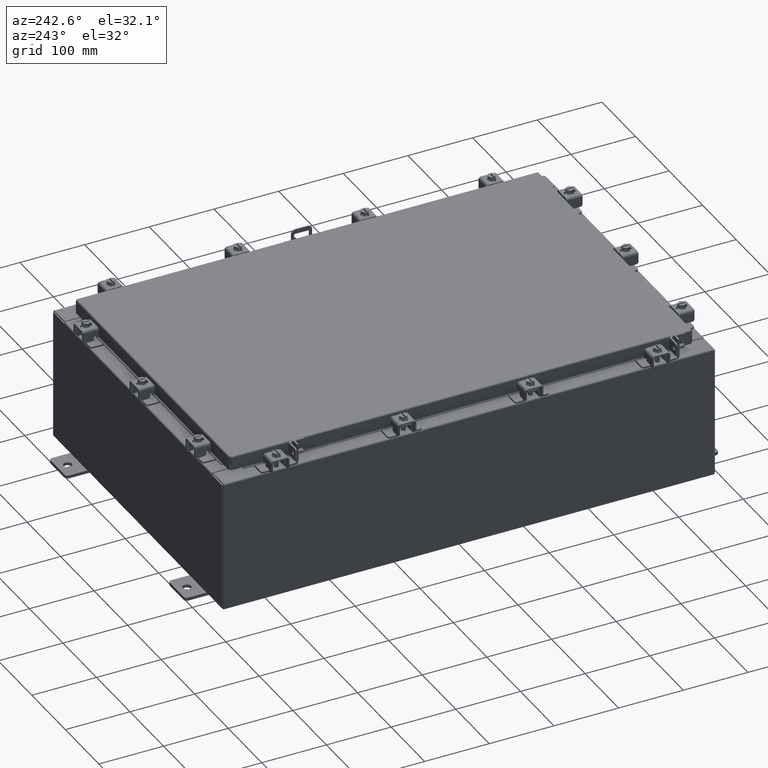
[diagram: clean part render]
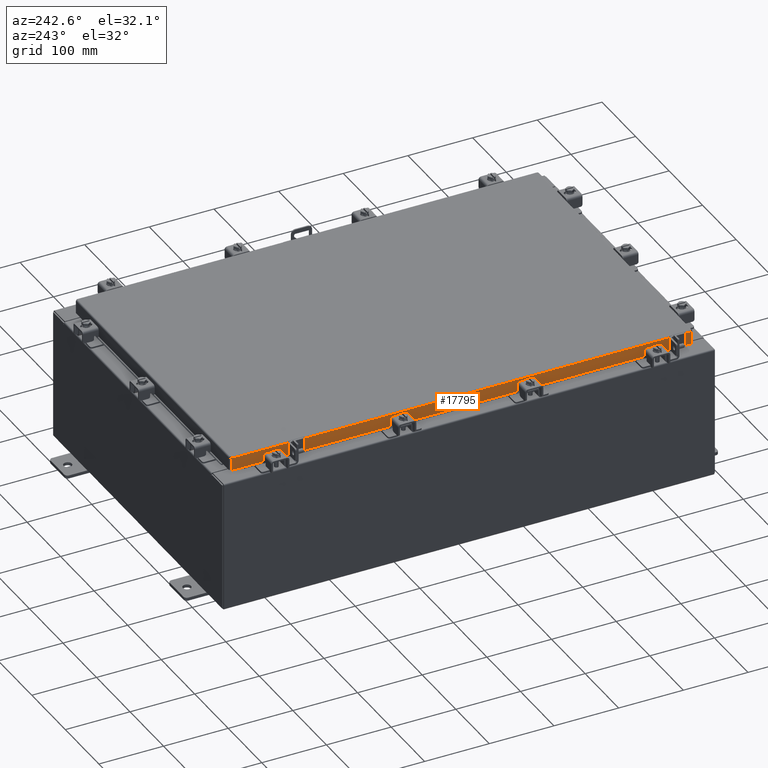
[diagram: same view with one face highlighted and labeled with its STEP entity id]
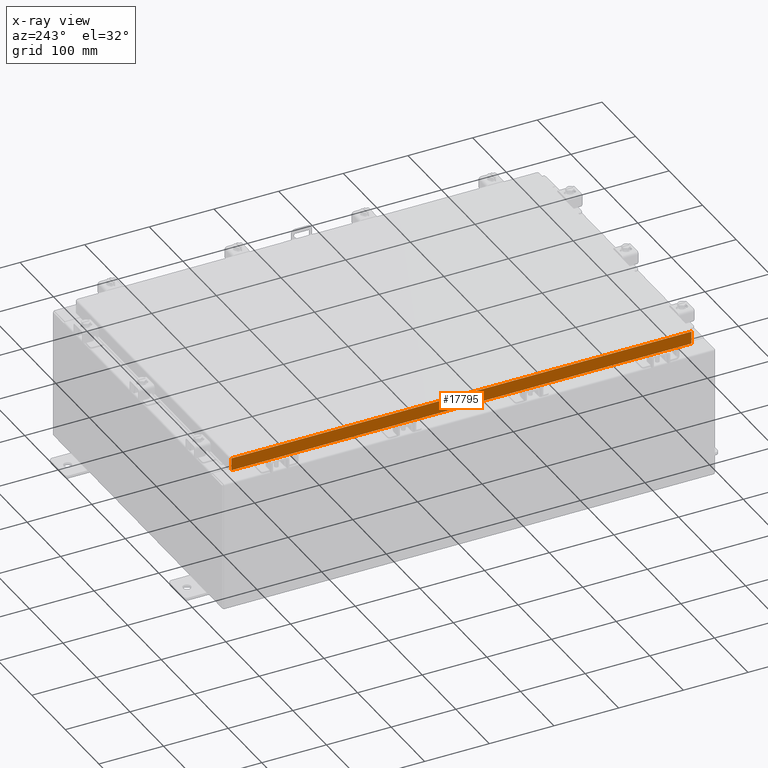
[diagram: x-ray of the same camera — body ghosted, the highlighted face saturated]
A machine part, auxiliary view. The second image highlights one B-rep face of the part: STEP entity #17795.
The next image is the same camera in x-ray: the body ghosted, the highlighted face saturated — about 0% of this face is hidden behind the body in this view.
In plain terms, the highlighted planar face has unit normal (1, 0, -0).
Its self-contained STEP definition (entity closure, byte-faithful):
#189 = CARTESIAN_POINT ( 'NONE',  ( -9.077999999999999400, 14.00515786437627400, -0.8499999999999963100 ) ) ;
#209 = VECTOR ( 'NONE', #6712, 39.37007874015748100 ) ;
#491 = VECTOR ( 'NONE', #5502, 39.37007874015748100 ) ;
#652 = DIRECTION ( 'NONE',  ( -2.818880942772360100E-015, 0.0000000000000000000, -1.000000000000000000 ) ) ;
#1519 = ORIENTED_EDGE ( 'NONE', *, *, #11576, .F. ) ;
#1623 = AXIS2_PLACEMENT_3D ( 'NONE', #4145, #11312, #652 ) ;
#2158 = VERTEX_POINT ( 'NONE', #21833 ) ;
#2159 = ORIENTED_EDGE ( 'NONE', *, *, #17341, .F. ) ;
#3682 = VECTOR ( 'NONE', #19810, 39.37007874015748100 ) ;
#3809 = VERTEX_POINT ( 'NONE', #189 ) ;
#3819 = LINE ( 'NONE', #19237, #209 ) ;
#4083 = VECTOR ( 'NONE', #7180, 39.37007874015748100 ) ;
#4145 = CARTESIAN_POINT ( 'NONE',  ( -9.077999999999997600, -3.100053527314609600E-030, 2.585061485449906300E-014 ) ) ;
#4181 = CARTESIAN_POINT ( 'NONE',  ( -9.077999999999997600, 14.00515786437626900, 1.236481095165428500E-013 ) ) ;
#4447 = VERTEX_POINT ( 'NONE', #4790 ) ;
#4790 = CARTESIAN_POINT ( 'NONE',  ( -9.077999999999997600, 14.00515786437626900, -0.08770000000000007000 ) ) ;
#5400 = CARTESIAN_POINT ( 'NONE',  ( -9.077999999999999400, -14.09399999999999600, -0.8499999999999996400 ) ) ;
#5502 = DIRECTION ( 'NONE',  ( -0.0000000000000000000, 1.000000000000000000, -0.0000000000000000000 ) ) ;
#6697 = VERTEX_POINT ( 'NONE', #15215 ) ;
#6712 = DIRECTION ( 'NONE',  ( -2.818880942772360100E-015, 6.982962677686265900E-015, -1.000000000000000000 ) ) ;
#6741 = ORIENTED_EDGE ( 'NONE', *, *, #12191, .F. ) ;
#7180 = DIRECTION ( 'NONE',  ( -0.0000000000000000000, 1.000000000000000000, 1.211441035930299800E-016 ) ) ;
#8811 = DIRECTION ( 'NONE',  ( 3.414908049476327800E-031, -1.000000000000000000, -9.308245715024052500E-046 ) ) ;
#8873 = CARTESIAN_POINT ( 'NONE',  ( -9.077999999999999400, -14.00515786437626200, -0.8499999999999996400 ) ) ;
#9103 = CARTESIAN_POINT ( 'NONE',  ( -9.077999999999999400, -14.09399999999999600, -0.8499999999999996400 ) ) ;
#9205 = ORIENTED_EDGE ( 'NONE', *, *, #20621, .F. ) ;
#9931 = ORIENTED_EDGE ( 'NONE', *, *, #22090, .T. ) ;
#11121 = LINE ( 'NONE', #4181, #15897 ) ;
#11312 = DIRECTION ( 'NONE',  ( 1.000000000000000000, 3.414908049476327800E-031, -2.818880942772360100E-015 ) ) ;
#11576 = EDGE_CURVE ( 'NONE', #2158, #13172, #19494, .T. ) ;
#12191 = EDGE_CURVE ( 'NONE', #13172, #3809, #18332, .T. ) ;
#12302 = CARTESIAN_POINT ( 'NONE',  ( -9.077999999999997600, -14.09399999999999600, -0.08770000000000007000 ) ) ;
#12358 = ORIENTED_EDGE ( 'NONE', *, *, #15095, .F. ) ;
#12611 = LINE ( 'NONE', #9103, #3682 ) ;
#13172 = VERTEX_POINT ( 'NONE', #15964 ) ;
#14872 = DIRECTION ( 'NONE',  ( -2.818880942772360100E-015, 6.982962677686265900E-015, -1.000000000000000000 ) ) ;
#15095 = EDGE_CURVE ( 'NONE', #4447, #6697, #20658, .T. ) ;
#15215 = CARTESIAN_POINT ( 'NONE',  ( -9.077999999999997600, -14.00515786437626400, -0.08770000000000007000 ) ) ;
#15868 = VECTOR ( 'NONE', #8811, 39.37007874015748100 ) ;
#15897 = VECTOR ( 'NONE', #14872, 39.37007874015748100 ) ;
#15964 = CARTESIAN_POINT ( 'NONE',  ( -9.077999999999997600, 13.25515786437627400, -0.8500000000000006400 ) ) ;
#16627 = PLANE ( 'NONE',  #1623 ) ;
#17341 = EDGE_CURVE ( 'NONE', #6697, #18731, #3819, .T. ) ;
#17795 = ADVANCED_FACE ( 'NONE', ( #19170 ), #16627, .F. ) ;
#18332 = LINE ( 'NONE', #5400, #4083 ) ;
#18731 = VERTEX_POINT ( 'NONE', #8873 ) ;
#19170 = FACE_OUTER_BOUND ( 'NONE', #20690, .T. ) ;
#19237 = CARTESIAN_POINT ( 'NONE',  ( -9.077999999999997600, -14.00515786437626500, -0.07469999999999978000 ) ) ;
#19494 = LINE ( 'NONE', #19970, #491 ) ;
#19810 = DIRECTION ( 'NONE',  ( -0.0000000000000000000, 1.000000000000000000, 1.211441035930299800E-016 ) ) ;
#19970 = CARTESIAN_POINT ( 'NONE',  ( -9.077999999999997600, -13.25515786437626200, -0.8500000000000006400 ) ) ;
#20621 = EDGE_CURVE ( 'NONE', #18731, #2158, #12611, .T. ) ;
#20658 = LINE ( 'NONE', #12302, #15868 ) ;
#20690 = EDGE_LOOP ( 'NONE', ( #12358, #9931, #6741, #1519, #9205, #2159 ) ) ;
#21833 = CARTESIAN_POINT ( 'NONE',  ( -9.077999999999997600, -13.25515786437625600, -0.8500000000000006400 ) ) ;
#22090 = EDGE_CURVE ( 'NONE', #4447, #3809, #11121, .T. ) ;